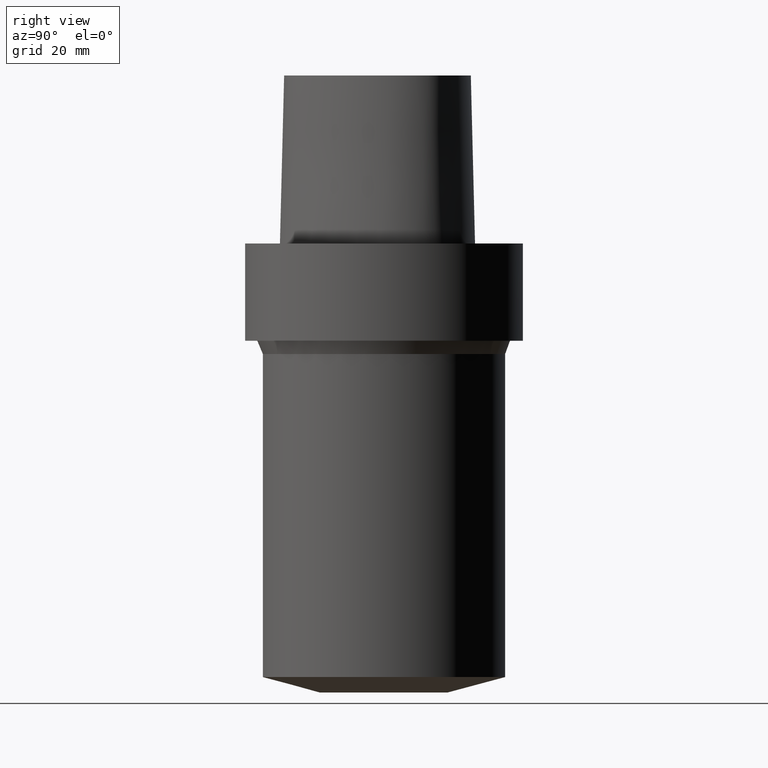
[diagram: clean part render]
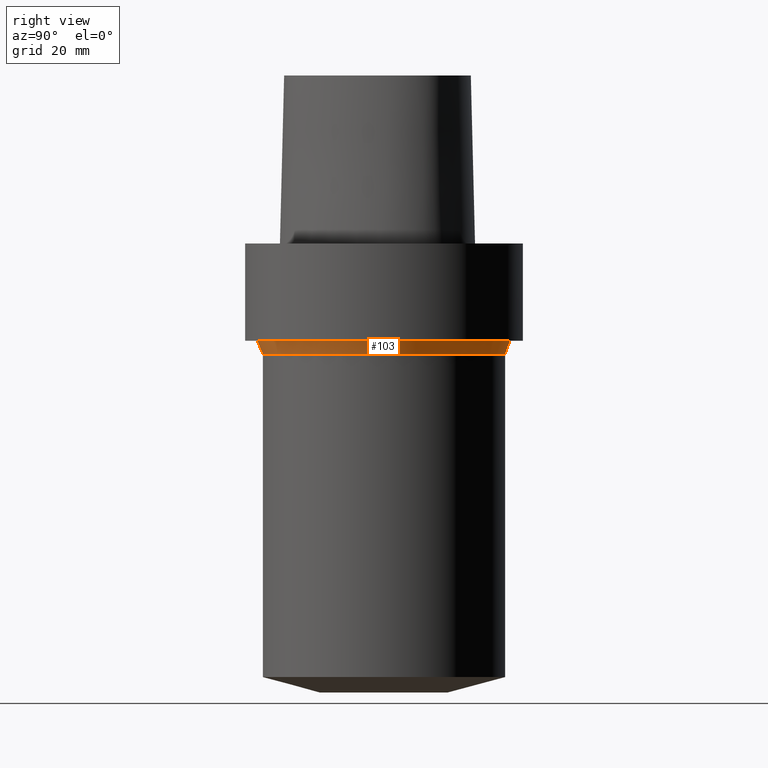
[diagram: same view with one face highlighted and labeled with its STEP entity id]
A machine part, right view. The second image highlights one B-rep face of the part: STEP entity #103.
In plain terms, the highlighted conical surface has half-angle 20 deg.
Its self-contained STEP definition (entity closure, byte-faithful):
#93=EDGE_CURVE('Unnamed[1]',#194,#194,#195,.T.);
#95=EDGE_CURVE('Unnamed[1]',#197,#197,#198,.T.);
#103=ADVANCED_FACE('Unnamed[1]',(#207,#208),#209,.T.);
#194=VERTEX_POINT('',#412);
#195=CIRCLE('',#413,28.5919107027961);
#197=VERTEX_POINT('',#416);
#198=CIRCLE('',#417,27.499999999997);
#207=FACE_BOUND('',#430,.T.);
#208=FACE_BOUND('',#431,.T.);
#209=CONICAL_SURFACE('',#432,28.0459553513966,0.349065850398867);
#412=CARTESIAN_POINT('',(1.34711147906209E-015,28.5919107027963,-22.0));
#413=AXIS2_PLACEMENT_3D('',#614,#615,#616);
#416=CARTESIAN_POINT('',(1.53080849893427E-015,27.4999999999972,-25.0000000000012));
#417=AXIS2_PLACEMENT_3D('',#617,#618,#619);
#430=EDGE_LOOP('',(#627));
#431=EDGE_LOOP('',(#628));
#432=AXIS2_PLACEMENT_3D('',#629,#630,#631);
#614=CARTESIAN_POINT('',(1.34711147906209E-015,1.73194222958124E-013,-22.0));
#615=DIRECTION('',(6.12323399573677E-017,1.22464679914735E-016,-1.0));
#616=DIRECTION('',(-1.23259516440783E-032,1.0,1.22464679914735E-016));
#617=CARTESIAN_POINT('',(1.53080849893427E-015,1.73561616997869E-013,-25.0000000000012));
#618=DIRECTION('',(6.12323399573677E-017,1.22464679914735E-016,-1.0));
#619=DIRECTION('',(-1.23259516440783E-032,1.0,1.22464679914735E-016));
#627=ORIENTED_EDGE('',*,*,#95,.F.);
#628=ORIENTED_EDGE('',*,*,#93,.T.);
#629=CARTESIAN_POINT('',(1.43895998899818E-015,1.73377919977996E-013,-23.5000000000006));
#630=DIRECTION('',(-6.12323399573676E-017,-1.22464679914735E-016,1.0));
#631=DIRECTION('',(-1.23259516440783E-032,1.0,1.22464679914735E-016));